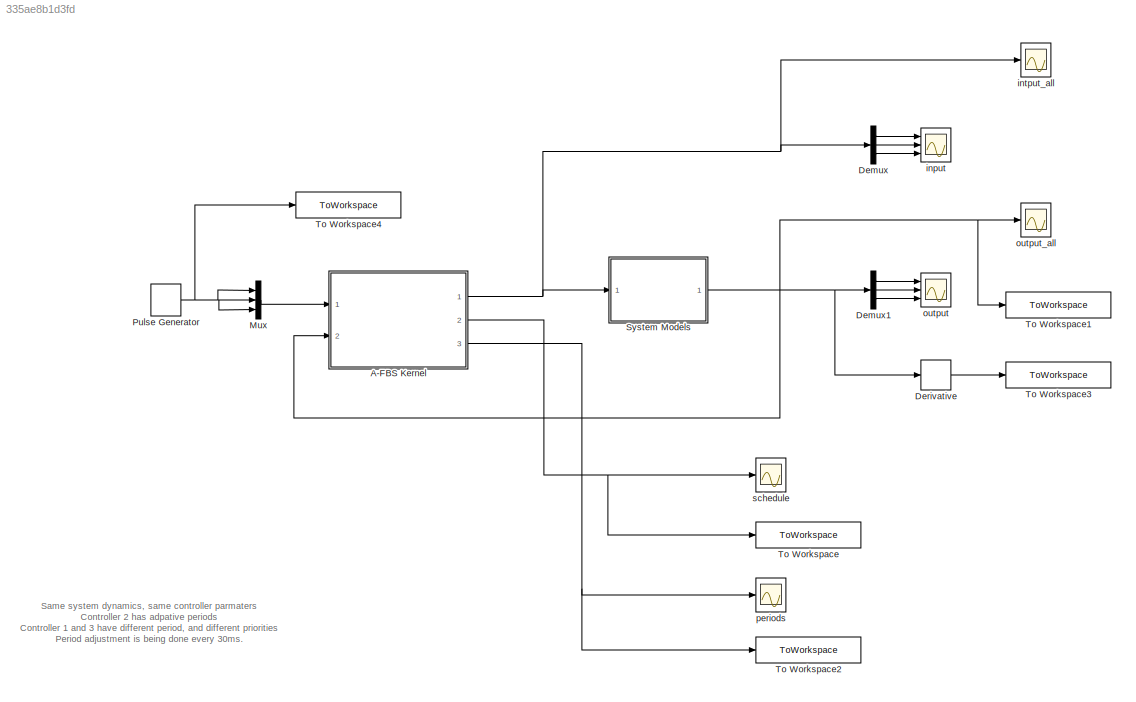
MODEL slx_335ae8b1d3fd
KIND model
CONFIG AbsTol = auto
CONFIG FixedStep = 0.1
CONFIG MaxStep = auto
CONFIG MinStep = auto
CONFIG RelTol = 1e-4
CONFIG SampleTimeConstraint = Unconstrained
CONFIG Solver = ode45
CONFIG SolverMode = Auto
CONFIG SolverName = ode45
CONFIG StartTime = 0.0
CONFIG StopTime = 5
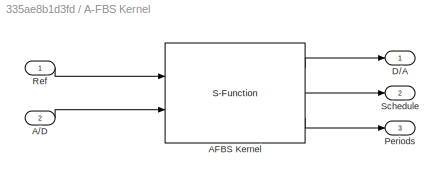
BLOCK [SubSystem] A-FBS Kernel
  Ports = [2, 3]
  RequestExecContextInheritance = off
BLOCK [Inport] A-FBS Kernel/A//D
  IconDisplay = Port number
  Port = 2
BLOCK [S-Function] A-FBS Kernel/AFBS Kernel
  FunctionName = kernel
  Parameters = [T1, T2, T3]
  Ports = [2, 3]
BLOCK [Outport] A-FBS Kernel/D//A
  IconDisplay = Port number
BLOCK [Outport] A-FBS Kernel/Periods
  IconDisplay = Port number
  Port = 3
BLOCK [Inport] A-FBS Kernel/Ref
  IconDisplay = Port number
BLOCK [Outport] A-FBS Kernel/Schedule
  IconDisplay = Port number
  Port = 2
BLOCK [Demux] Demux
  DisplayOption = bar
  Outputs = 3
  Ports = [1, 3]
BLOCK [Demux] Demux1
  DisplayOption = bar
  Outputs = 3
  Ports = [1, 3]
BLOCK [Derivative] Derivative
BLOCK [Mux] Mux
  DisplayOption = bar
  Inputs = 3
  Ports = [3, 1]
BLOCK [DiscretePulseGenerator] Pulse Generator
  Period = 0.2
  Ports = [0, 1]
  PulseType = Time based
  PulseWidth = 50
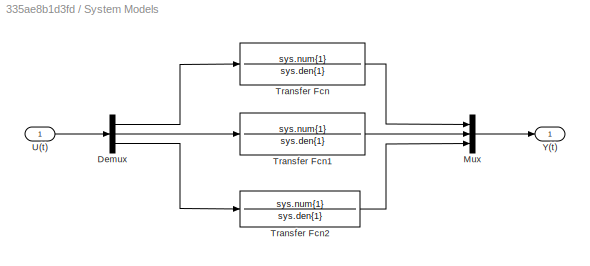
BLOCK [SubSystem] System Models
  Ports = [1, 1]
  RequestExecContextInheritance = off
BLOCK [Demux] System Models/Demux
  DisplayOption = bar
  Outputs = 3
  Ports = [1, 3]
BLOCK [Mux] System Models/Mux
  DisplayOption = bar
  Inputs = 3
  Ports = [3, 1]
BLOCK [TransferFcn] System Models/Transfer Fcn
  Denominator = sys.den{1}
  Numerator = sys.num{1}
BLOCK [TransferFcn] System Models/Transfer Fcn1
  Denominator = sys.den{1}
  Numerator = sys.num{1}
BLOCK [TransferFcn] System Models/Transfer Fcn2
  Denominator = sys.den{1}
  Numerator = sys.num{1}
BLOCK [Inport] System Models/U(t)
  IconDisplay = Port number
BLOCK [Outport] System Models/Y(t)
  IconDisplay = Port number
BLOCK [ToWorkspace] To Workspace
  FixptAsFi = on
  MaxDataPoints = inf
  Ports = [1]
  SampleTime = -1
  Save2DSignal = 3-D array (concatenate along third dimension)
  SaveFormat = Timeseries
  VariableName = simout_schedule
BLOCK [ToWorkspace] To Workspace1
  FixptAsFi = on
  MaxDataPoints = inf
  Ports = [1]
  SampleTime = -1
  Save2DSignal = 3-D array (concatenate along third dimension)
  SaveFormat = Timeseries
  VariableName = simout_y
BLOCK [ToWorkspace] To Workspace2
  FixptAsFi = on
  MaxDataPoints = inf
  Ports = [1]
  SampleTime = -1
  Save2DSignal = 3-D array (concatenate along third dimension)
  SaveFormat = Timeseries
  VariableName = simout_periods
BLOCK [ToWorkspace] To Workspace3
  FixptAsFi = on
  MaxDataPoints = inf
  Ports = [1]
  SampleTime = -1
  Save2DSignal = 3-D array (concatenate along third dimension)
  SaveFormat = Timeseries
  VariableName = simout_y_dot
BLOCK [ToWorkspace] To Workspace4
  FixptAsFi = on
  MaxDataPoints = inf
  Ports = [1]
  SampleTime = -1
  Save2DSignal = 3-D array (concatenate along third dimension)
  SaveFormat = Timeseries
  VariableName = simout_reference
BLOCK [Scope] input
  Floating = off
  LimitDataPoints = off
  NumInputPorts = 3
  Ports = [3]
  SaveName = ScopeData1
  YMax = 5~5~5
  YMin = -5~-5~-5
  ZoomMode = xonly
BLOCK [Scope] intput_all
  Floating = off
  LimitDataPoints = off
  NumInputPorts = 1
  Ports = [1]
  SaveName = ScopeData4
  ZoomMode = xonly
BLOCK [Scope] output
  Floating = off
  LimitDataPoints = off
  NumInputPorts = 3
  Ports = [3]
  YMax = 5~5~5
  YMin = -5~-5~-5
  ZoomMode = xonly
BLOCK [Scope] output_all
  Floating = off
  LimitDataPoints = off
  NumInputPorts = 1
  Ports = [1]
  SaveName = ScopeData3
  ZoomMode = xonly
BLOCK [Scope] periods
  Floating = off
  LimitDataPoints = off
  NumInputPorts = 1
  Ports = [1]
  SaveName = ScopeData5
BLOCK [Scope] schedule
  Floating = off
  LimitDataPoints = off
  NumInputPorts = 1
  Ports = [1]
  SaveName = ScopeData2
  ZoomMode = xonly
ANNOTATION (root): Same system dynamics, same controller parmaters Controller 2 has adpative periods Controller 1 and 3 have different period, and different priorities Period adjustment is being done every 30ms.
LINE A-FBS Kernel/A//D:1 -> A-FBS Kernel/AFBS Kernel:2
LINE A-FBS Kernel/AFBS Kernel:1 -> A-FBS Kernel/D//A:1
LINE A-FBS Kernel/AFBS Kernel:2 -> A-FBS Kernel/Schedule:1
LINE A-FBS Kernel/AFBS Kernel:3 -> A-FBS Kernel/Periods:1
LINE A-FBS Kernel/Ref:1 -> A-FBS Kernel/AFBS Kernel:1
NET A-FBS Kernel:1 -> Demux:1, System Models:1, intput_all:1
NET A-FBS Kernel:2 -> To Workspace:1, schedule:1
NET A-FBS Kernel:3 -> To Workspace2:1, periods:1
LINE Demux1:1 -> output:1
LINE Demux1:2 -> output:2
LINE Demux1:3 -> output:3
LINE Demux:1 -> input:1
LINE Demux:2 -> input:2
LINE Demux:3 -> input:3
LINE Derivative:1 -> To Workspace3:1
LINE Mux:1 -> A-FBS Kernel:1
NET Pulse Generator:1 -> Mux:1, Mux:2, Mux:3, To Workspace4:1
LINE System Models/Demux:1 -> System Models/Transfer Fcn:1
LINE System Models/Demux:2 -> System Models/Transfer Fcn1:1
LINE System Models/Demux:3 -> System Models/Transfer Fcn2:1
LINE System Models/Mux:1 -> System Models/Y(t):1
LINE System Models/Transfer Fcn1:1 -> System Models/Mux:2
LINE System Models/Transfer Fcn2:1 -> System Models/Mux:3
LINE System Models/Transfer Fcn:1 -> System Models/Mux:1
LINE System Models/U(t):1 -> System Models/Demux:1
NET System Models:1 -> A-FBS Kernel:2, Demux1:1, Derivative:1, To Workspace1:1, output_all:1
note: NET lines group one-source signal fan-out (src -> all destinations, sorted); 1:1 wires keep LINE
